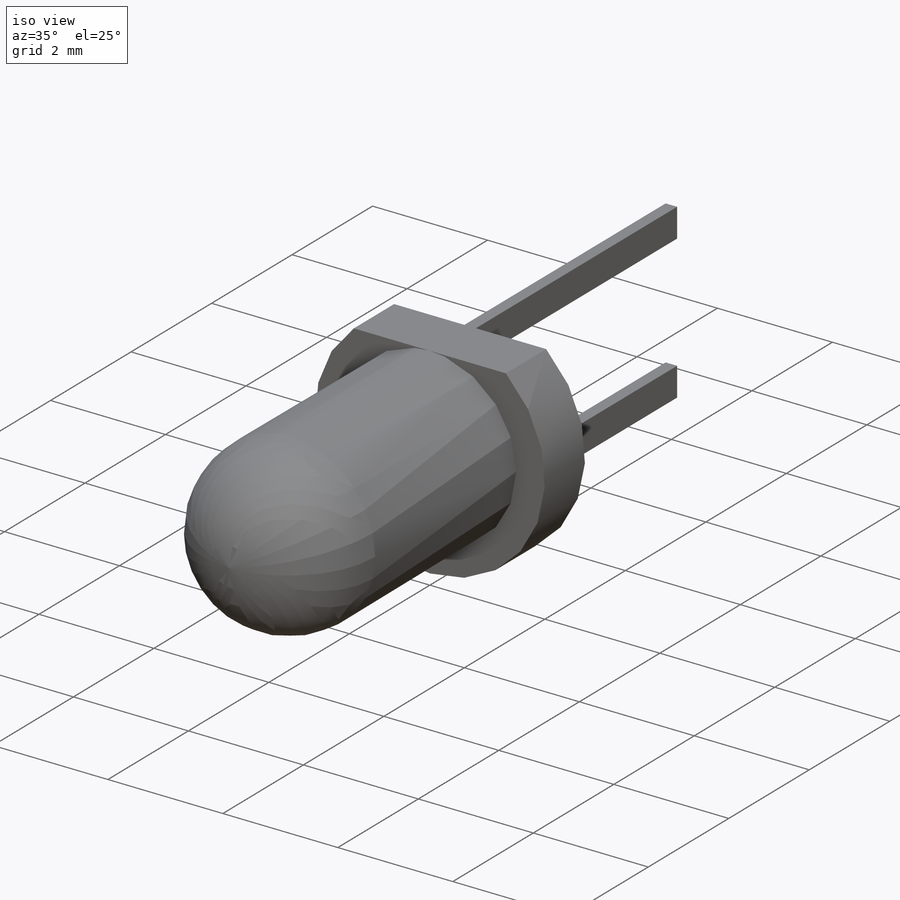
[diagram: iso view]
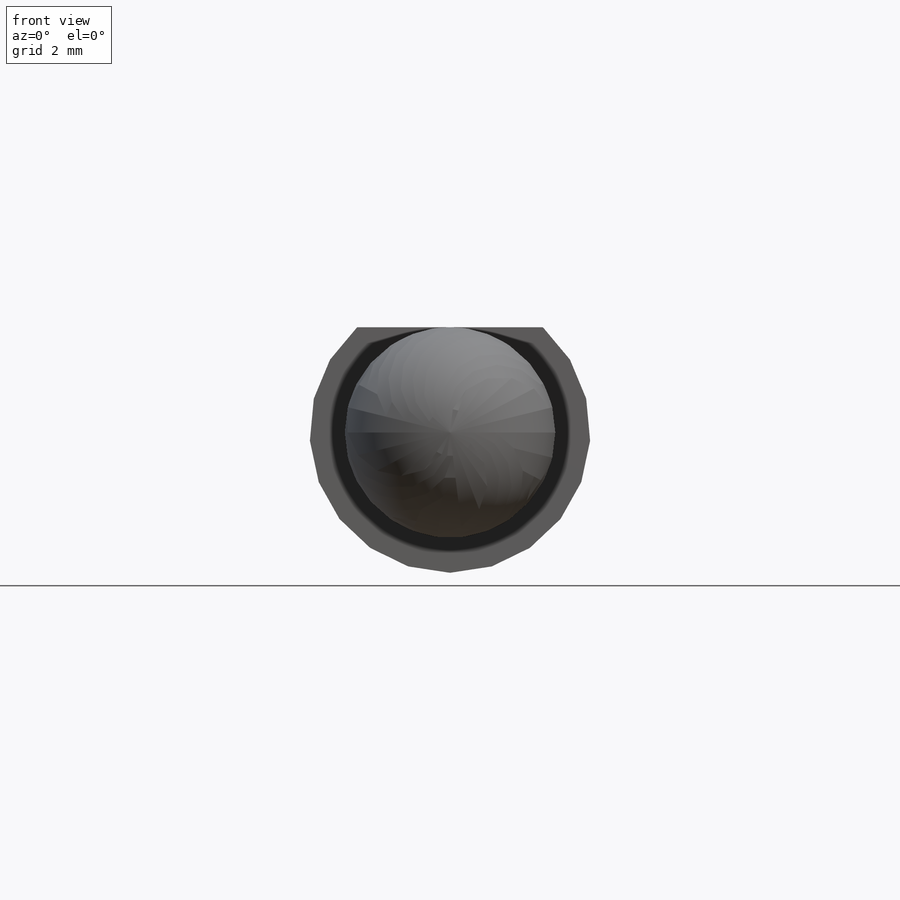
[diagram: front view]
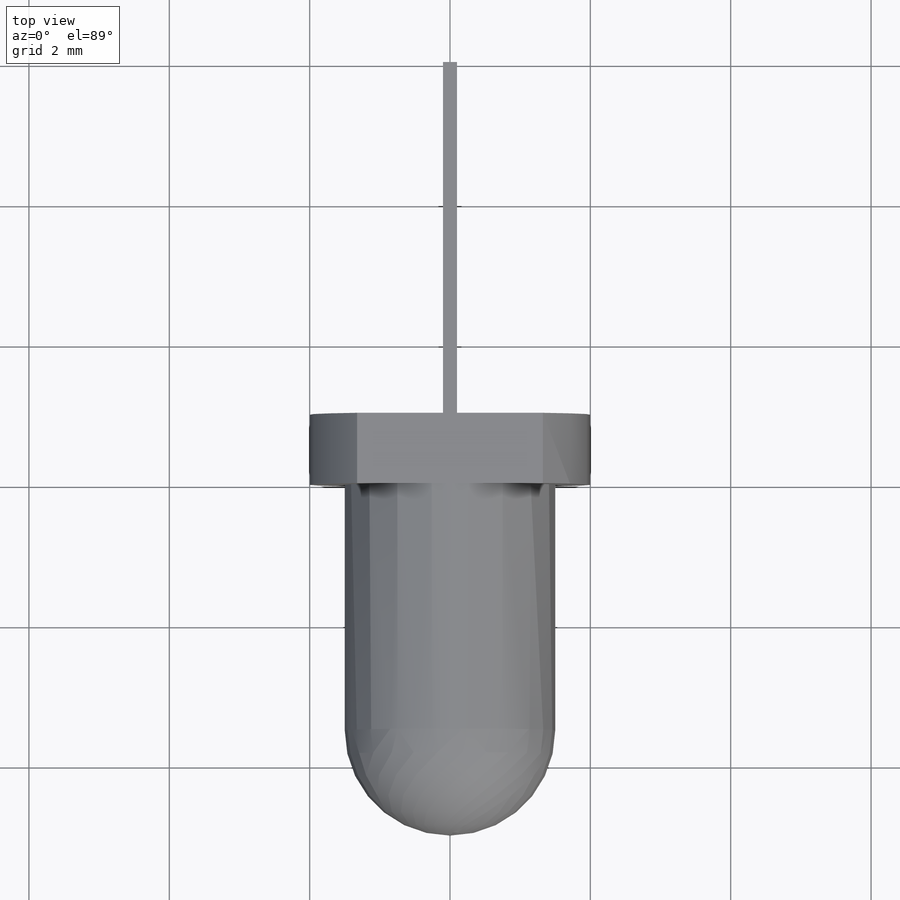
[diagram: top view]
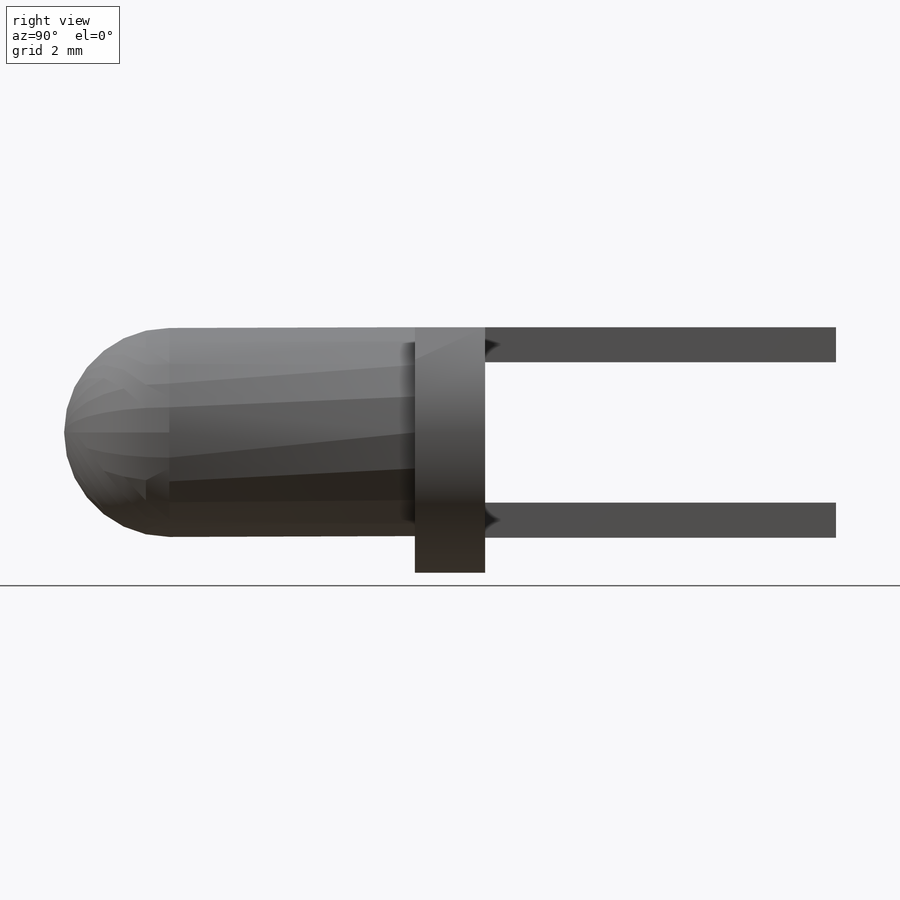
[diagram: right view]
SOLIDWORKS PART (.sldprt)
format: sldprt  version: not decoded by parser v0  size: 264,704 bytes
history: native  units: mm
features: sketch x4, extrude x3, material x1, dome x1, plane x1, cut_extrude x1 (+12 scaffold rows collapsed)
feature tree (23):
  scaffold x12  (default folders/planes/origin — collapsed)
  material  "PW110:Mi:0:51:Ar:0:-1:C1:1:2:3:Re:5:Di:13:Tr:19:"
  sketch  "Sketch1"  dims[D1=3.0mm]
  extrude  "Base-Extrude"  Depth=3.5mm
  dome  "Dome1"
  sketch  "Sketch2"  dims[D1=4.0mm]
  extrude  "Boss-Extrude1"  Depth=1mm
  sketch  "Sketch3"  dims[D1=0.5mm D2=0.2mm D3=1.5mm D4=0.1mm]
  extrude  "Boss-Extrude2"  Depth=5mm
  plane  "Plane1"
  sketch  "Sketch5"
  cut_extrude  "Cut-Extrude1"  Depth=5mm
decode coverage: 7 of 9 modeling features carry decoded parameters
note: suppression state not decoded; provenance and decode notes live in map.json
